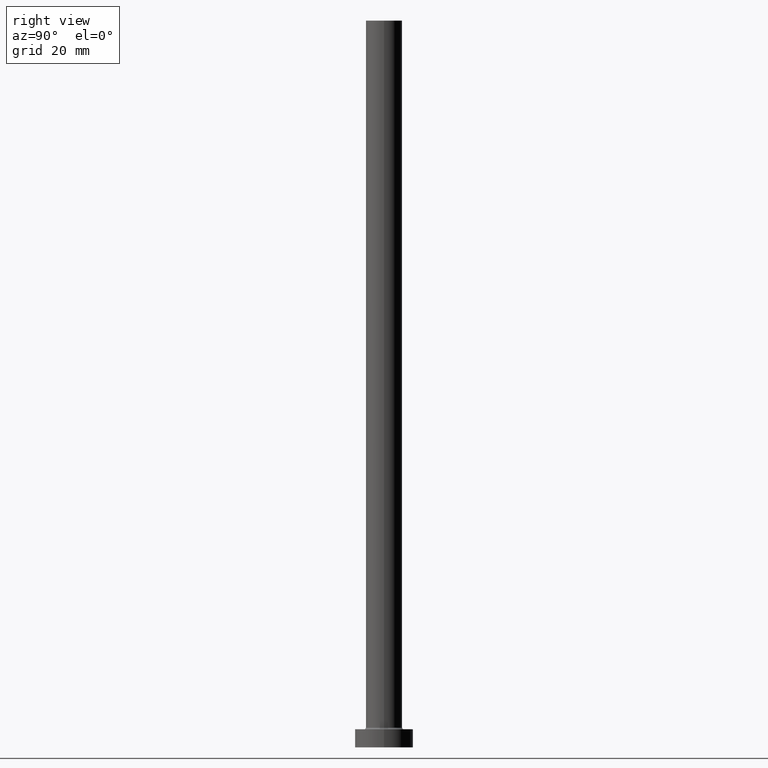
[diagram: clean part render]
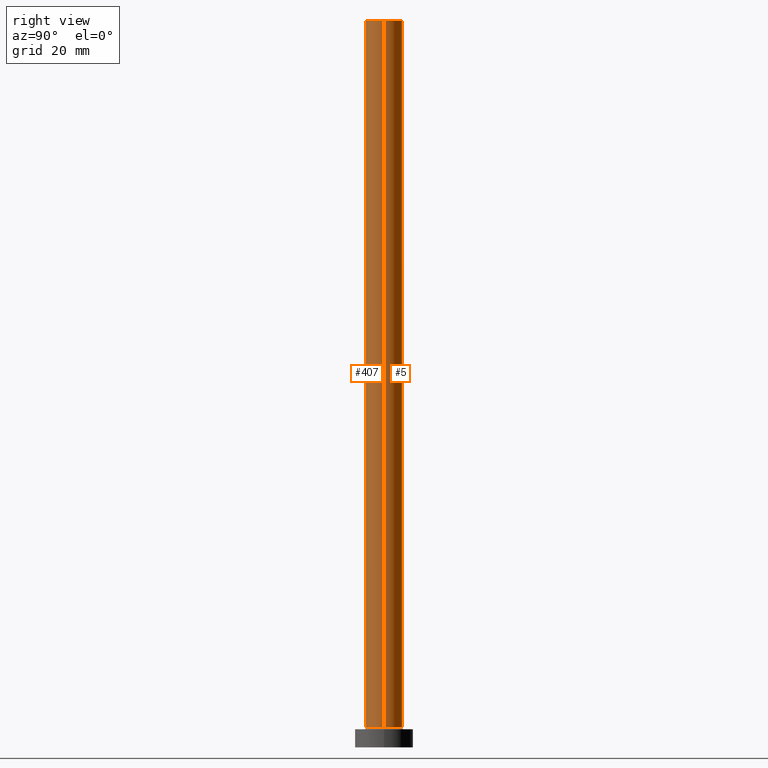
[diagram: same view with one multi-face feature highlighted, each face labeled with its STEP entity id]
A machine part, right view. The highlighted faces form ONE feature: a constant-radius fillet chain: 2 tangent blend faces with common blend radius 5 mm. The faces share edges in the B-rep.
Their STEP definitions:
[1] entity #407 (Cylinder):
#12 = AXIS2_PLACEMENT_3D ( 'NONE', #455, #129, #26 ) ;
#18 = FACE_OUTER_BOUND ( 'NONE', #258, .T. ) ;
#26 = DIRECTION ( 'NONE',  ( 1.000000000000000000, 0.000000000000000000, 0.000000000000000000 ) ) ;
#28 = EDGE_CURVE ( 'NONE', #331, #360, #277, .T. ) ;
#30 = CARTESIAN_POINT ( 'NONE',  ( 5.000000000000000000, 6.123233995736766282E-16, 200.0000000000000000 ) ) ;
#64 = AXIS2_PLACEMENT_3D ( 'NONE', #235, #379, #196 ) ;
#119 = EDGE_CURVE ( 'NONE', #178, #360, #169, .T. ) ;
#129 = DIRECTION ( 'NONE',  ( 0.000000000000000000, 0.000000000000000000, 1.000000000000000000 ) ) ;
#135 = CARTESIAN_POINT ( 'NONE',  ( 5.000000000000000000, 6.123233995736766282E-16, 200.0000000000000000 ) ) ;
#138 = ORIENTED_EDGE ( 'NONE', *, *, #119, .T. ) ;
#169 = CIRCLE ( 'NONE', #12, 5.000000000000000000 ) ;
#172 = CARTESIAN_POINT ( 'NONE',  ( -5.000000000000000000, 0.000000000000000000, 200.0000000000000000 ) ) ;
#178 = VERTEX_POINT ( 'NONE', #459 ) ;
#187 = DIRECTION ( 'NONE',  ( -1.000000000000000000, 0.000000000000000000, 0.000000000000000000 ) ) ;
#196 = DIRECTION ( 'NONE',  ( 1.000000000000000000, 0.000000000000000000, 0.000000000000000000 ) ) ;
#202 = DIRECTION ( 'NONE',  ( -0.000000000000000000, -0.000000000000000000, -1.000000000000000000 ) ) ;
#205 = EDGE_CURVE ( 'NONE', #442, #331, #361, .T. ) ;
#211 = CARTESIAN_POINT ( 'NONE',  ( 5.000000000000000000, 6.123233995736766282E-16, 5.500000000000005329 ) ) ;
#216 = EDGE_CURVE ( 'NONE', #442, #178, #341, .T. ) ;
#224 = CARTESIAN_POINT ( 'NONE',  ( 0.000000000000000000, 0.000000000000000000, 200.0000000000000000 ) ) ;
#235 = CARTESIAN_POINT ( 'NONE',  ( 0.000000000000000000, 0.000000000000000000, 200.0000000000000000 ) ) ;
#258 = EDGE_LOOP ( 'NONE', ( #351, #300, #410, #138 ) ) ;
#277 = LINE ( 'NONE', #30, #335 ) ;
#300 = ORIENTED_EDGE ( 'NONE', *, *, #205, .F. ) ;
#325 = VECTOR ( 'NONE', #433, 1000.000000000000000 ) ;
#331 = VERTEX_POINT ( 'NONE', #135 ) ;
#335 = VECTOR ( 'NONE', #202, 1000.000000000000000 ) ;
#341 = LINE ( 'NONE', #172, #325 ) ;
#351 = ORIENTED_EDGE ( 'NONE', *, *, #28, .F. ) ;
#360 = VERTEX_POINT ( 'NONE', #211 ) ;
#361 = CIRCLE ( 'NONE', #64, 5.000000000000000000 ) ;
#379 = DIRECTION ( 'NONE',  ( 0.000000000000000000, 0.000000000000000000, 1.000000000000000000 ) ) ;
#385 = AXIS2_PLACEMENT_3D ( 'NONE', #224, #406, #187 ) ;
#406 = DIRECTION ( 'NONE',  ( -0.000000000000000000, -0.000000000000000000, -1.000000000000000000 ) ) ;
#407 = ADVANCED_FACE ( 'NONE', ( #18 ), #443, .T. ) ;
#410 = ORIENTED_EDGE ( 'NONE', *, *, #216, .T. ) ;
#433 = DIRECTION ( 'NONE',  ( -0.000000000000000000, -0.000000000000000000, -1.000000000000000000 ) ) ;
#438 = CARTESIAN_POINT ( 'NONE',  ( -5.000000000000000000, 0.000000000000000000, 200.0000000000000000 ) ) ;
#442 = VERTEX_POINT ( 'NONE', #438 ) ;
#443 = CYLINDRICAL_SURFACE ( 'NONE', #385, 5.000000000000000000 ) ;
#455 = CARTESIAN_POINT ( 'NONE',  ( 0.000000000000000000, 0.000000000000000000, 5.500000000000005329 ) ) ;
#459 = CARTESIAN_POINT ( 'NONE',  ( -5.000000000000000000, 0.000000000000000000, 5.500000000000005329 ) ) ;
[2] entity #5 (Cylinder):
#5 = ADVANCED_FACE ( 'NONE', ( #60 ), #376, .T. ) ;
#28 = EDGE_CURVE ( 'NONE', #331, #360, #277, .T. ) ;
#30 = CARTESIAN_POINT ( 'NONE',  ( 5.000000000000000000, 6.123233995736766282E-16, 200.0000000000000000 ) ) ;
#51 = CIRCLE ( 'NONE', #312, 5.000000000000000000 ) ;
#56 = CARTESIAN_POINT ( 'NONE',  ( 0.000000000000000000, 0.000000000000000000, 5.500000000000005329 ) ) ;
#60 = FACE_OUTER_BOUND ( 'NONE', #191, .T. ) ;
#135 = CARTESIAN_POINT ( 'NONE',  ( 5.000000000000000000, 6.123233995736766282E-16, 200.0000000000000000 ) ) ;
#142 = ORIENTED_EDGE ( 'NONE', *, *, #216, .F. ) ;
#143 = EDGE_CURVE ( 'NONE', #331, #442, #51, .T. ) ;
#155 = EDGE_CURVE ( 'NONE', #360, #178, #182, .T. ) ;
#164 = DIRECTION ( 'NONE',  ( 0.000000000000000000, 0.000000000000000000, 1.000000000000000000 ) ) ;
#172 = CARTESIAN_POINT ( 'NONE',  ( -5.000000000000000000, 0.000000000000000000, 200.0000000000000000 ) ) ;
#178 = VERTEX_POINT ( 'NONE', #459 ) ;
#182 = CIRCLE ( 'NONE', #304, 5.000000000000000000 ) ;
#191 = EDGE_LOOP ( 'NONE', ( #436, #339, #353, #142 ) ) ;
#202 = DIRECTION ( 'NONE',  ( -0.000000000000000000, -0.000000000000000000, -1.000000000000000000 ) ) ;
#206 = CARTESIAN_POINT ( 'NONE',  ( 0.000000000000000000, 0.000000000000000000, 200.0000000000000000 ) ) ;
#211 = CARTESIAN_POINT ( 'NONE',  ( 5.000000000000000000, 6.123233995736766282E-16, 5.500000000000005329 ) ) ;
#216 = EDGE_CURVE ( 'NONE', #442, #178, #341, .T. ) ;
#274 = AXIS2_PLACEMENT_3D ( 'NONE', #303, #414, #450 ) ;
#277 = LINE ( 'NONE', #30, #335 ) ;
#303 = CARTESIAN_POINT ( 'NONE',  ( 0.000000000000000000, 0.000000000000000000, 200.0000000000000000 ) ) ;
#304 = AXIS2_PLACEMENT_3D ( 'NONE', #56, #164, #421 ) ;
#312 = AXIS2_PLACEMENT_3D ( 'NONE', #206, #381, #343 ) ;
#325 = VECTOR ( 'NONE', #433, 1000.000000000000000 ) ;
#331 = VERTEX_POINT ( 'NONE', #135 ) ;
#335 = VECTOR ( 'NONE', #202, 1000.000000000000000 ) ;
#339 = ORIENTED_EDGE ( 'NONE', *, *, #28, .T. ) ;
#341 = LINE ( 'NONE', #172, #325 ) ;
#343 = DIRECTION ( 'NONE',  ( 1.000000000000000000, 0.000000000000000000, 0.000000000000000000 ) ) ;
#353 = ORIENTED_EDGE ( 'NONE', *, *, #155, .T. ) ;
#360 = VERTEX_POINT ( 'NONE', #211 ) ;
#376 = CYLINDRICAL_SURFACE ( 'NONE', #274, 5.000000000000000000 ) ;
#381 = DIRECTION ( 'NONE',  ( 0.000000000000000000, 0.000000000000000000, 1.000000000000000000 ) ) ;
#414 = DIRECTION ( 'NONE',  ( -0.000000000000000000, -0.000000000000000000, -1.000000000000000000 ) ) ;
#421 = DIRECTION ( 'NONE',  ( 1.000000000000000000, 0.000000000000000000, 0.000000000000000000 ) ) ;
#433 = DIRECTION ( 'NONE',  ( -0.000000000000000000, -0.000000000000000000, -1.000000000000000000 ) ) ;
#436 = ORIENTED_EDGE ( 'NONE', *, *, #143, .F. ) ;
#438 = CARTESIAN_POINT ( 'NONE',  ( -5.000000000000000000, 0.000000000000000000, 200.0000000000000000 ) ) ;
#442 = VERTEX_POINT ( 'NONE', #438 ) ;
#450 = DIRECTION ( 'NONE',  ( -1.000000000000000000, 0.000000000000000000, 0.000000000000000000 ) ) ;
#459 = CARTESIAN_POINT ( 'NONE',  ( -5.000000000000000000, 0.000000000000000000, 5.500000000000005329 ) ) ;